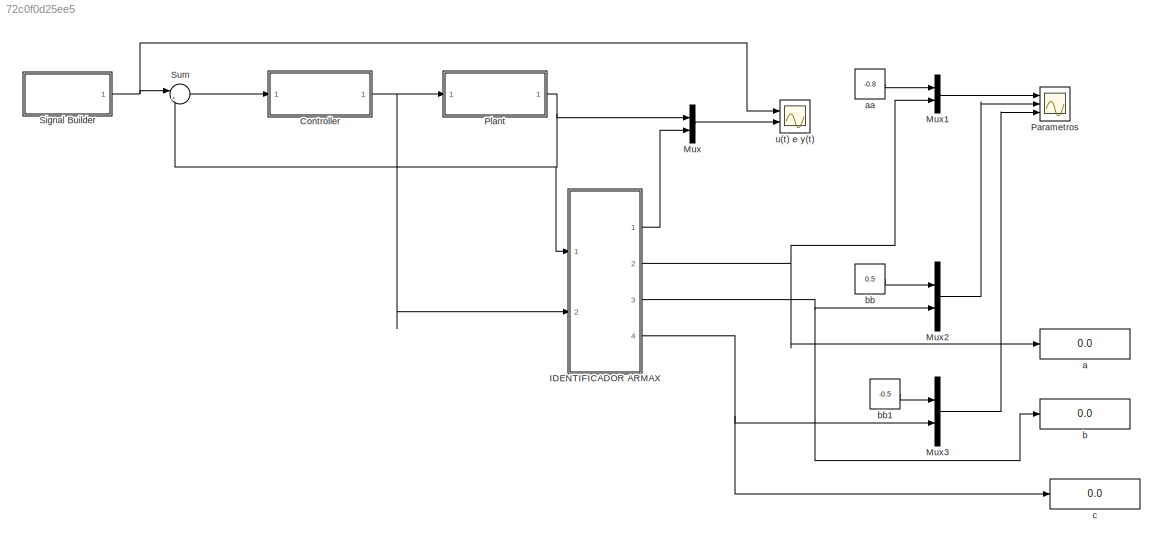
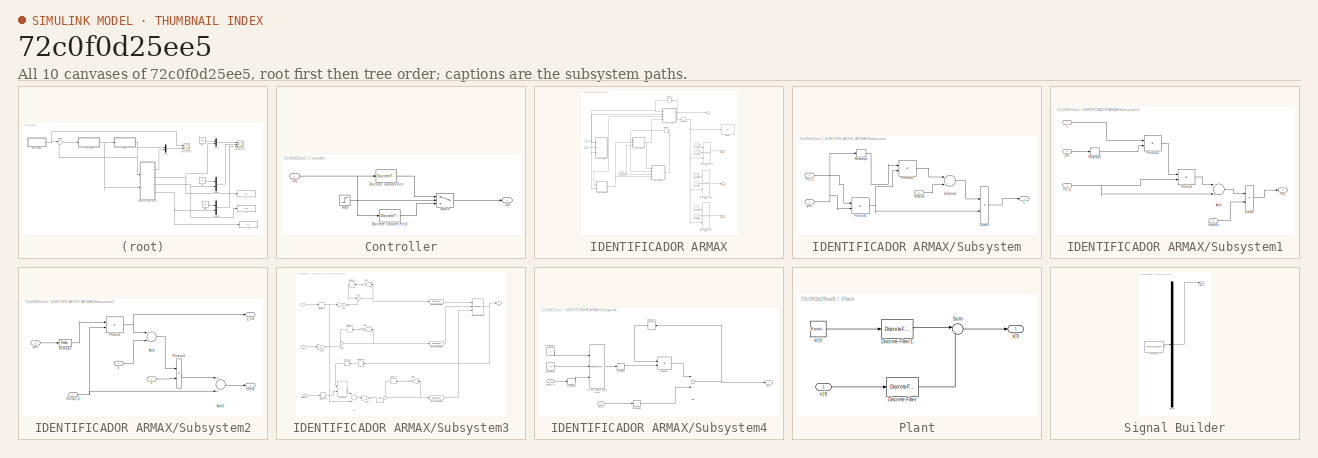
[diagram: thumbnail index - all 10 canvases of the model, root first then tree order]
MODEL slx_72c0f0d25ee5
KIND model
CONFIG AbsTol = auto
CONFIG FixedStep = auto
CONFIG MaxStep = auto
CONFIG MinStep = auto
CONFIG RelTol = 1e-3
CONFIG SampleTimeConstraint = Unconstrained
CONFIG Solver = ode45
CONFIG SolverMode = Auto
CONFIG SolverName = ode45
CONFIG StartTime = 0.0
CONFIG StopTime = 200
BLOCK [SubSystem] Controller
  Ports = [1, 1]
  RequestExecContextInheritance = off
BLOCK [DiscreteTransferFcn] Controller/Discrete Transfer Fcn
  Denominator = [1 0.2]
  InputPortMap = u0
  Ports = [1, 1]
  SampleTime = 0.01
BLOCK [DiscreteTransferFcn] Controller/Discrete Transfer Fcn1
  InputPortMap = u0
  Numerator = [5]
  Ports = [1, 1]
  SampleTime = 0.01
BLOCK [Step] Controller/Step
  SampleTime = 0
  Time = 50
BLOCK [Switch] Controller/Switch
  InputSameDT = off
  SaturateOnIntegerOverflow = off
BLOCK [Inport] Controller/e(t)
  IconDisplay = Port number
BLOCK [Outport] Controller/u(t)
  IconDisplay = Port number
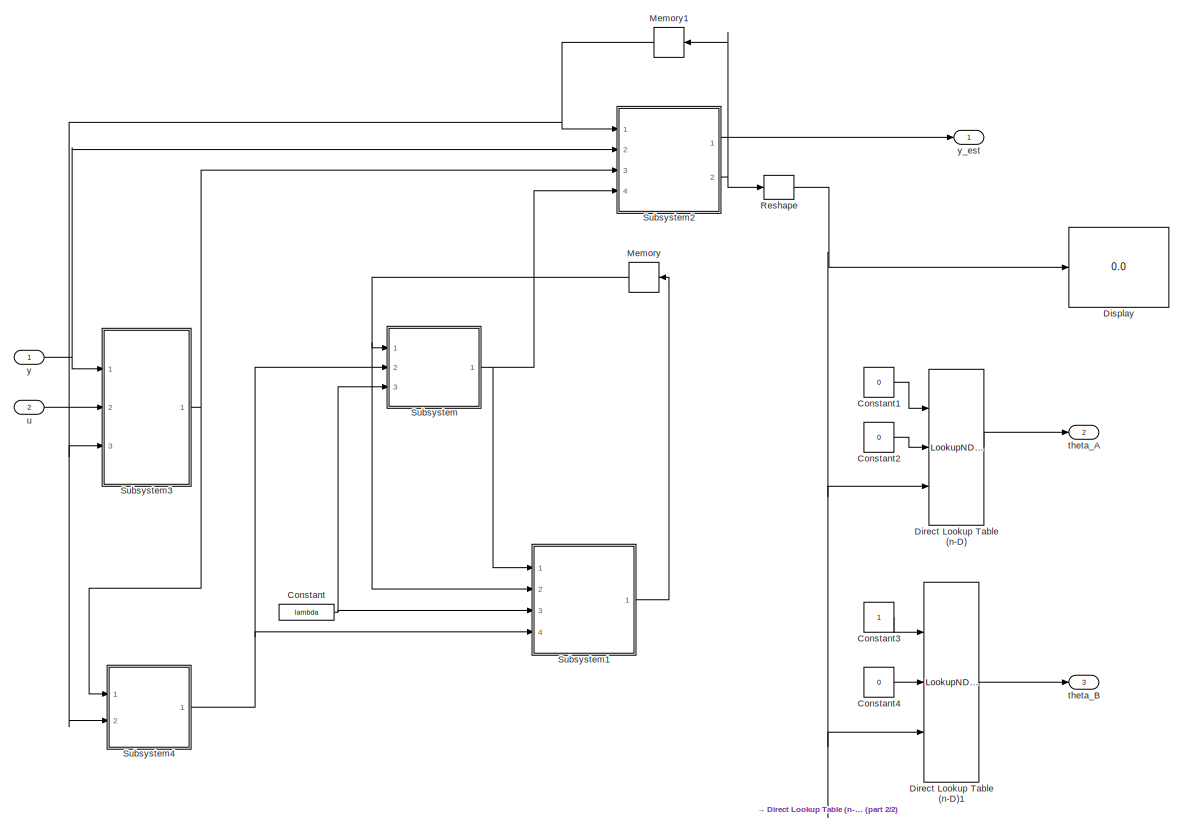
[diagram: IDENTIFICADOR ARMAX - part 1/2, most of the canvas]
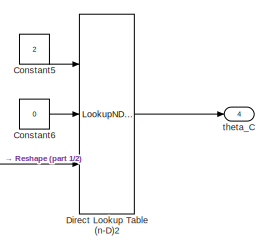
[diagram: IDENTIFICADOR ARMAX - part 2/2, bottom right region]
BLOCK [SubSystem] IDENTIFICADOR ARMAX
  Ports = [2, 4]
  RequestExecContextInheritance = off
BLOCK [Constant] IDENTIFICADOR ARMAX/Constant
  Value = lambda
BLOCK [Constant] IDENTIFICADOR ARMAX/Constant1
  Value = 0
BLOCK [Constant] IDENTIFICADOR ARMAX/Constant2
  Value = 0
BLOCK [Constant] IDENTIFICADOR ARMAX/Constant3
BLOCK [Constant] IDENTIFICADOR ARMAX/Constant4
  Value = 0
BLOCK [Constant] IDENTIFICADOR ARMAX/Constant5
  Value = 2
BLOCK [Constant] IDENTIFICADOR ARMAX/Constant6
  Value = 0
BLOCK [LookupNDDirect] IDENTIFICADOR ARMAX/Direct Lookup Table (n-D)
  DiagnosticForOutOfRangeInput = Error
  Ports = [3, 1]
  SampleTime = 0.01
  Table = [4 5 ;16 19 ]
  TableIsInput = on
BLOCK [LookupNDDirect] IDENTIFICADOR ARMAX/Direct Lookup Table (n-D)1
  DiagnosticForOutOfRangeInput = Error
  Ports = [3, 1]
  SampleTime = 0.01
  Table = [4 5 ;16 19 ]
  TableIsInput = on
BLOCK [LookupNDDirect] IDENTIFICADOR ARMAX/Direct Lookup Table (n-D)2
  DiagnosticForOutOfRangeInput = Error
  Ports = [3, 1]
  SampleTime = 0.01
  Table = [4 5 ;16 19 ]
  TableIsInput = on
BLOCK [Display] IDENTIFICADOR ARMAX/Display
  Decimation = 1
  Ports = [1]
BLOCK [Memory] IDENTIFICADOR ARMAX/Memory
  X0 = 1e6*eye(3)
BLOCK [Memory] IDENTIFICADOR ARMAX/Memory1
BLOCK [Reshape] IDENTIFICADOR ARMAX/Reshape
  OutputDimensionality = Column vector (2-D)
  Ports = [1, 1]
BLOCK [SubSystem] IDENTIFICADOR ARMAX/Subsystem
  Ports = [3, 1]
  RequestExecContextInheritance = off
BLOCK [Product] IDENTIFICADOR ARMAX/Subsystem/Divide
  InputSameDT = off
  Inputs = /*
  OutDataTypeStr = Inherit: Inherit via internal rule
  Ports = [2, 1]
  RndMeth = Floor
  SaturateOnIntegerOverflow = off
BLOCK [Outport] IDENTIFICADOR ARMAX/Subsystem/L
  IconDisplay = Port number
BLOCK [Inport] IDENTIFICADOR ARMAX/Subsystem/P(t-1)
  IconDisplay = Port number
BLOCK [Product] IDENTIFICADOR ARMAX/Subsystem/Product1
  InputSameDT = off
  Multiplication = Matrix(*)
  OutDataTypeStr = Inherit: Inherit via internal rule
  Ports = [2, 1]
  RndMeth = Floor
  SampleTime = 0.01
  SaturateOnIntegerOverflow = off
BLOCK [Product] IDENTIFICADOR ARMAX/Subsystem/Product2
  InputSameDT = off
  Multiplication = Matrix(*)
  OutDataTypeStr = Inherit: Inherit via internal rule
  Ports = [2, 1]
  RndMeth = Floor
  SampleTime = 0.01
  SaturateOnIntegerOverflow = off
BLOCK [Reshape] IDENTIFICADOR ARMAX/Subsystem/Reshape
  OutputDimensionality = Row vector (2-D)
  Ports = [1, 1]
BLOCK [Sum] IDENTIFICADOR ARMAX/Subsystem/Subtract
  InputSameDT = off
  OutDataTypeStr = Inherit: Inherit via internal rule
  Ports = [2, 1]
  SaturateOnIntegerOverflow = off
BLOCK [Inport] IDENTIFICADOR ARMAX/Subsystem/lambda
  IconDisplay = Port number
  Port = 3
BLOCK [Inport] IDENTIFICADOR ARMAX/Subsystem/phi
  IconDisplay = Port number
  Port = 2
BLOCK [SubSystem] IDENTIFICADOR ARMAX/Subsystem1
  Ports = [4, 1]
  RequestExecContextInheritance = off
BLOCK [Sum] IDENTIFICADOR ARMAX/Subsystem1/Add
  InputSameDT = off
  Inputs = -+
  OutDataTypeStr = Inherit: Inherit via internal rule
  Ports = [2, 1]
  SaturateOnIntegerOverflow = off
BLOCK [Product] IDENTIFICADOR ARMAX/Subsystem1/Divide
  InputSameDT = off
  Inputs = */
  OutDataTypeStr = Inherit: Inherit via internal rule
  Ports = [2, 1]
  RndMeth = Floor
  SaturateOnIntegerOverflow = off
BLOCK [Inport] IDENTIFICADOR ARMAX/Subsystem1/L
  IconDisplay = Port number
BLOCK [Outport] IDENTIFICADOR ARMAX/Subsystem1/P(t)
  IconDisplay = Port number
BLOCK [Inport] IDENTIFICADOR ARMAX/Subsystem1/P(t-1)
  IconDisplay = Port number
  Port = 2
BLOCK [Product] IDENTIFICADOR ARMAX/Subsystem1/Product
  InputSameDT = off
  Multiplication = Matrix(*)
  OutDataTypeStr = Inherit: Inherit via internal rule
  Ports = [2, 1]
  RndMeth = Floor
  SampleTime = 0.01
  SaturateOnIntegerOverflow = off
BLOCK [Product] IDENTIFICADOR ARMAX/Subsystem1/Product2
  InputSameDT = off
  Multiplication = Matrix(*)
  OutDataTypeStr = Inherit: Inherit via internal rule
  Ports = [2, 1]
  RndMeth = Floor
  SampleTime = 0.01
  SaturateOnIntegerOverflow = off
BLOCK [Reshape] IDENTIFICADOR ARMAX/Subsystem1/Reshape
  OutputDimensionality = Row vector (2-D)
  Ports = [1, 1]
BLOCK [Inport] IDENTIFICADOR ARMAX/Subsystem1/lambda
  IconDisplay = Port number
  Port = 3
BLOCK [Inport] IDENTIFICADOR ARMAX/Subsystem1/phi
  IconDisplay = Port number
  Port = 4
BLOCK [SubSystem] IDENTIFICADOR ARMAX/Subsystem2
  Ports = [4, 2]
  RequestExecContextInheritance = off
BLOCK [Sum] IDENTIFICADOR ARMAX/Subsystem2/Add
  InputSameDT = off
  Inputs = -+
  OutDataTypeStr = Inherit: Inherit via internal rule
  Ports = [2, 1]
  SaturateOnIntegerOverflow = off
BLOCK [Sum] IDENTIFICADOR ARMAX/Subsystem2/Add1
  InputSameDT = off
  OutDataTypeStr = Inherit: Inherit via internal rule
  Ports = [2, 1]
  SaturateOnIntegerOverflow = off
BLOCK [Inport] IDENTIFICADOR ARMAX/Subsystem2/L
  IconDisplay = Port number
  Port = 4
BLOCK [Product] IDENTIFICADOR ARMAX/Subsystem2/Product
  InputSameDT = off
  Multiplication = Matrix(*)
  OutDataTypeStr = Inherit: Inherit via internal rule
  Ports = [2, 1]
  RndMeth = Floor
  SampleTime = 0.01
  SaturateOnIntegerOverflow = off
BLOCK [Product] IDENTIFICADOR ARMAX/Subsystem2/Product1
  InputSameDT = off
  OutDataTypeStr = Inherit: Inherit via internal rule
  Ports = [2, 1]
  RndMeth = Floor
  SaturateOnIntegerOverflow = off
BLOCK [Reshape] IDENTIFICADOR ARMAX/Subsystem2/Reshape
  OutputDimensionality = Row vector (2-D)
  Ports = [1, 1]
BLOCK [Inport] IDENTIFICADOR ARMAX/Subsystem2/phi
  IconDisplay = Port number
  Port = 3
BLOCK [Outport] IDENTIFICADOR ARMAX/Subsystem2/theta
  IconDisplay = Port number
  Port = 2
BLOCK [Inport] IDENTIFICADOR ARMAX/Subsystem2/theta(t-1)
  IconDisplay = Port number
BLOCK [Inport] IDENTIFICADOR ARMAX/Subsystem2/y
  IconDisplay = Port number
  Port = 2
BLOCK [Outport] IDENTIFICADOR ARMAX/Subsystem2/y_est
  IconDisplay = Port number
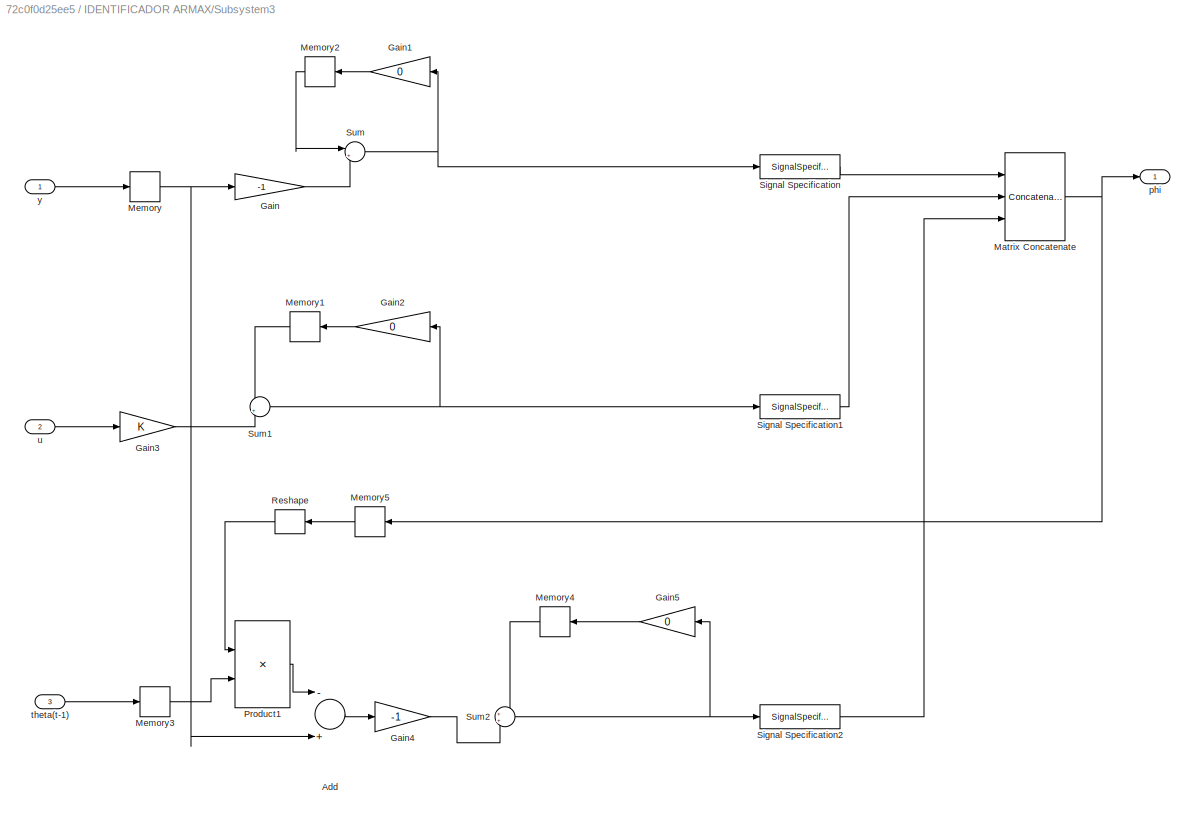
BLOCK [SubSystem] IDENTIFICADOR ARMAX/Subsystem3
  Ports = [3, 1]
  RequestExecContextInheritance = off
BLOCK [Sum] IDENTIFICADOR ARMAX/Subsystem3/Add
  InputSameDT = off
  Inputs = -+
  OutDataTypeStr = Inherit: Inherit via internal rule
  Ports = [2, 1]
  SaturateOnIntegerOverflow = off
BLOCK [Gain] IDENTIFICADOR ARMAX/Subsystem3/Gain
  Gain = -1
  Multiplication = Matrix(K*u)
  OutDataTypeStr = Inherit: Inherit via internal rule
  ParamDataTypeStr = Inherit: Inherit via internal rule
  SaturateOnIntegerOverflow = off
BLOCK [Gain] IDENTIFICADOR ARMAX/Subsystem3/Gain1
  Gain = 0
  Multiplication = Matrix(K*u)
  OutDataTypeStr = Inherit: Inherit via internal rule
  ParamDataTypeStr = Inherit: Inherit via internal rule
  SaturateOnIntegerOverflow = off
BLOCK [Gain] IDENTIFICADOR ARMAX/Subsystem3/Gain2
  Gain = 0
  Multiplication = Matrix(K*u)
  OutDataTypeStr = Inherit: Inherit via internal rule
  ParamDataTypeStr = Inherit: Inherit via internal rule
  SaturateOnIntegerOverflow = off
BLOCK [Gain] IDENTIFICADOR ARMAX/Subsystem3/Gain3
  Multiplication = Matrix(K*u)
  OutDataTypeStr = Inherit: Inherit via internal rule
  ParamDataTypeStr = Inherit: Inherit via internal rule
  SaturateOnIntegerOverflow = off
BLOCK [Gain] IDENTIFICADOR ARMAX/Subsystem3/Gain4
  Gain = -1
  Multiplication = Matrix(K*u)
  OutDataTypeStr = Inherit: Inherit via internal rule
  ParamDataTypeStr = Inherit: Inherit via internal rule
  SaturateOnIntegerOverflow = off
BLOCK [Gain] IDENTIFICADOR ARMAX/Subsystem3/Gain5
  Gain = 0
  Multiplication = Matrix(K*u)
  OutDataTypeStr = Inherit: Inherit via internal rule
  ParamDataTypeStr = Inherit: Inherit via internal rule
  SaturateOnIntegerOverflow = off
BLOCK [Concatenate] IDENTIFICADOR ARMAX/Subsystem3/Matrix Concatenate
  Mode = Multidimensional array
  NumInputs = 3
  Ports = [3, 1]
BLOCK [Memory] IDENTIFICADOR ARMAX/Subsystem3/Memory
BLOCK [Memory] IDENTIFICADOR ARMAX/Subsystem3/Memory1
BLOCK [Memory] IDENTIFICADOR ARMAX/Subsystem3/Memory2
BLOCK [Memory] IDENTIFICADOR ARMAX/Subsystem3/Memory3
BLOCK [Memory] IDENTIFICADOR ARMAX/Subsystem3/Memory4
BLOCK [Memory] IDENTIFICADOR ARMAX/Subsystem3/Memory5
BLOCK [Product] IDENTIFICADOR ARMAX/Subsystem3/Product1
  InputSameDT = off
  Multiplication = Matrix(*)
  OutDataTypeStr = Inherit: Inherit via internal rule
  Ports = [2, 1]
  RndMeth = Floor
  SampleTime = 0.01
  SaturateOnIntegerOverflow = off
BLOCK [Reshape] IDENTIFICADOR ARMAX/Subsystem3/Reshape
  OutputDimensionality = Row vector (2-D)
  Ports = [1, 1]
BLOCK [SignalSpecification] IDENTIFICADOR ARMAX/Subsystem3/Signal Specification
  Dimensions = [1 1]
BLOCK [SignalSpecification] IDENTIFICADOR ARMAX/Subsystem3/Signal Specification1
  Dimensions = [1 1]
BLOCK [SignalSpecification] IDENTIFICADOR ARMAX/Subsystem3/Signal Specification2
  Dimensions = [1 1]
BLOCK [Sum] IDENTIFICADOR ARMAX/Subsystem3/Sum
  IconShape = round
  InputSameDT = off
  Inputs = |++
  OutDataTypeStr = Inherit: Inherit via internal rule
  Ports = [2, 1]
  SaturateOnIntegerOverflow = off
BLOCK [Sum] IDENTIFICADOR ARMAX/Subsystem3/Sum1
  IconShape = round
  InputSameDT = off
  Inputs = |++
  OutDataTypeStr = Inherit: Inherit via internal rule
  Ports = [2, 1]
  SaturateOnIntegerOverflow = off
BLOCK [Sum] IDENTIFICADOR ARMAX/Subsystem3/Sum2
  IconShape = round
  InputSameDT = off
  OutDataTypeStr = Inherit: Inherit via internal rule
  Ports = [2, 1]
  SaturateOnIntegerOverflow = off
BLOCK [Outport] IDENTIFICADOR ARMAX/Subsystem3/phi
  IconDisplay = Port number
BLOCK [Inport] IDENTIFICADOR ARMAX/Subsystem3/theta(t-1)
  IconDisplay = Port number
  Port = 3
BLOCK [Inport] IDENTIFICADOR ARMAX/Subsystem3/u
  IconDisplay = Port number
  Port = 2
BLOCK [Inport] IDENTIFICADOR ARMAX/Subsystem3/y
  IconDisplay = Port number
BLOCK [SubSystem] IDENTIFICADOR ARMAX/Subsystem4
  Ports = [2, 1]
  RequestExecContextInheritance = off
BLOCK [Sum] IDENTIFICADOR ARMAX/Subsystem4/Add
  InputSameDT = off
  Inputs = -+
  OutDataTypeStr = Inherit: Inherit via internal rule
  Ports = [2, 1]
  SaturateOnIntegerOverflow = off
BLOCK [Constant] IDENTIFICADOR ARMAX/Subsystem4/Constant1
  Value = 2
BLOCK [Constant] IDENTIFICADOR ARMAX/Subsystem4/Constant2
  Value = 0
BLOCK [LookupNDDirect] IDENTIFICADOR ARMAX/Subsystem4/Direct Lookup Table (n-D)
  DiagnosticForOutOfRangeInput = Error
  Ports = [3, 1]
  SampleTime = 0.01
  Table = [4 5 ;16 19 ]
  TableIsInput = on
BLOCK [Memory] IDENTIFICADOR ARMAX/Subsystem4/Memory5
BLOCK [Product] IDENTIFICADOR ARMAX/Subsystem4/Product1
  InputSameDT = off
  Multiplication = Matrix(*)
  OutDataTypeStr = Inherit: Inherit via internal rule
  Ports = [2, 1]
  RndMeth = Floor
  SampleTime = 0.01
  SaturateOnIntegerOverflow = off
BLOCK [Reshape] IDENTIFICADOR ARMAX/Subsystem4/Reshape1
  OutputDimensionality = Column vector (2-D)
  Ports = [1, 1]
BLOCK [Reshape] IDENTIFICADOR ARMAX/Subsystem4/Reshape2
  OutputDimensionality = Column vector (2-D)
  Ports = [1, 1]
BLOCK [Reshape] IDENTIFICADOR ARMAX/Subsystem4/Reshape3
  OutputDimensionality = Column vector (2-D)
  Ports = [1, 1]
BLOCK [Inport] IDENTIFICADOR ARMAX/Subsystem4/phi(t)
  IconDisplay = Port number
BLOCK [Outport] IDENTIFICADOR ARMAX/Subsystem4/psi(t)
  IconDisplay = Port number
BLOCK [Inport] IDENTIFICADOR ARMAX/Subsystem4/theta(t-1)
  IconDisplay = Port number
  Port = 2
BLOCK [Outport] IDENTIFICADOR ARMAX/theta_A
  IconDisplay = Port number
  Port = 2
BLOCK [Outport] IDENTIFICADOR ARMAX/theta_B
  IconDisplay = Port number
  Port = 3
BLOCK [Outport] IDENTIFICADOR ARMAX/theta_C
  IconDisplay = Port number
  Port = 4
BLOCK [Inport] IDENTIFICADOR ARMAX/u
  IconDisplay = Port number
  Port = 2
BLOCK [Inport] IDENTIFICADOR ARMAX/y
  IconDisplay = Port number
BLOCK [Outport] IDENTIFICADOR ARMAX/y_est
  IconDisplay = Port number
BLOCK [Mux] Mux
  DisplayOption = bar
  Inputs = 2
  Ports = [2, 1]
BLOCK [Mux] Mux1
  DisplayOption = bar
  Inputs = 2
  Ports = [2, 1]
BLOCK [Mux] Mux2
  DisplayOption = bar
  Inputs = 2
  Ports = [2, 1]
BLOCK [Mux] Mux3
  DisplayOption = bar
  Inputs = 2
  Ports = [2, 1]
BLOCK [Scope] Parametros
  DataFormat = StructureWithTime
  Floating = off
  LimitDataPoints = off
  NumInputPorts = 3
  Ports = [3]
  SampleTime = 0
  SaveName = ScopeData1
  YMax = 5~5~5
  YMin = -5~-5~-5
BLOCK [SubSystem] Plant
  Ports = [1, 1]
  RequestExecContextInheritance = off
BLOCK [DiscreteFilter] Plant/Discrete Filter
  Denominator = [1 -0.8]
  InputPortMap = u0
  Numerator = [0 0.5]
  Ports = [1, 1]
  SampleTime = 0.01
BLOCK [DiscreteFilter] Plant/Discrete Filter1
  Denominator = [1 -0.8]
  InputPortMap = u0
  Numerator = [1 -0.5]
  Ports = [1, 1]
BLOCK [Sum] Plant/Sum
  IconShape = round
  InputSameDT = off
  Inputs = |++
  OutDataTypeStr = Inherit: Inherit via internal rule
  Ports = [2, 1]
  SaturateOnIntegerOverflow = off
BLOCK [RandomNumber] Plant/e(t)
  SampleTime = 0.1
  Variance = 0.00001
BLOCK [Inport] Plant/u(t)
  IconDisplay = Port number
BLOCK [Outport] Plant/y(t)
  IconDisplay = Port number
BLOCK [SubSystem] Signal Builder
  ClipboardFcn = sigbuilder_block('clipboard');
  CloseFcn = sigbuilder_block('close');
  ContinueFcn = sigbuilder_block('continue');
  CopyFcn = sigbuilder_block('copy');
  DeleteFcn = sigbuilder_block('delete');
  LoadFcn = sigbuilder_block('load');
  MaskHideContents = on
  ModelCloseFcn = sigbuilder_block('modelClose');
  NameChangeFcn = sigbuilder_block('namechange');
  OpenFcn = sigbuilder_block('open',[0 30 1080 588 ]);
  PauseFcn = sigbuilder_block('pause');
  Ports = [0, 1]
  PreSaveFcn = sigbuilder_block('preSave');
  RequestExecContextInheritance = off
  StartFcn = sigbuilder_block('start');
  StopFcn = sigbuilder_block('stop');
  Tag = STV Subsys
BLOCK [Demux] Signal Builder/Demux
  Outputs = 1
  Ports = [1, 1]
  Tag = STV Demux
BLOCK [FromWorkspace] Signal Builder/FromWs
  SampleTime = 0
  Tag = STV FromWs
  VariableName = tuvar
  ZeroCross = on
BLOCK [Outport] Signal Builder/Signal 1
  IconDisplay = Port number
  Tag = STV Outport
BLOCK [Sum] Sum
  IconShape = round
  InputSameDT = off
  Inputs = |+-
  OutDataTypeStr = Inherit: Inherit via internal rule
  Ports = [2, 1]
  SaturateOnIntegerOverflow = off
BLOCK [Display] a
  Decimation = 1
  Ports = [1]
BLOCK [Constant] aa
  Value = -0.8
BLOCK [Display] b
  Decimation = 1
  Ports = [1]
BLOCK [Constant] bb
  Value = 0.5
BLOCK [Constant] bb1
  Value = -0.5
BLOCK [Display] c
  Decimation = 1
  Ports = [1]
BLOCK [Scope] u(t) e y(t)
  DataFormat = StructureWithTime
  Floating = off
  LimitDataPoints = off
  NumInputPorts = 2
  Ports = [2]
  SampleTime = 0
  SaveToWorkspace = on
  YMax = 5~5
  YMin = -5~-5
LINE Controller/Discrete Transfer Fcn1:1 -> Controller/Switch:3
LINE Controller/Discrete Transfer Fcn:1 -> Controller/Switch:1
LINE Controller/Step:1 -> Controller/Switch:2
LINE Controller/Switch:1 -> Controller/u(t):1
NET Controller/e(t):1 -> Controller/Discrete Transfer Fcn1:1, Controller/Discrete Transfer Fcn:1
NET Controller:1 -> IDENTIFICADOR ARMAX:2, Plant:1
LINE IDENTIFICADOR ARMAX/Constant1:1 -> IDENTIFICADOR ARMAX/Direct Lookup Table (n-D):1
LINE IDENTIFICADOR ARMAX/Constant2:1 -> IDENTIFICADOR ARMAX/Direct Lookup Table (n-D):2
LINE IDENTIFICADOR ARMAX/Constant3:1 -> IDENTIFICADOR ARMAX/Direct Lookup Table (n-D)1:1
LINE IDENTIFICADOR ARMAX/Constant4:1 -> IDENTIFICADOR ARMAX/Direct Lookup Table (n-D)1:2
LINE IDENTIFICADOR ARMAX/Constant5:1 -> IDENTIFICADOR ARMAX/Direct Lookup Table (n-D)2:1
LINE IDENTIFICADOR ARMAX/Constant6:1 -> IDENTIFICADOR ARMAX/Direct Lookup Table (n-D)2:2
NET IDENTIFICADOR ARMAX/Constant:1 -> IDENTIFICADOR ARMAX/Subsystem1:3, IDENTIFICADOR ARMAX/Subsystem:3
LINE IDENTIFICADOR ARMAX/Direct Lookup Table (n-D)1:1 -> IDENTIFICADOR ARMAX/theta_B:1
LINE IDENTIFICADOR ARMAX/Direct Lookup Table (n-D)2:1 -> IDENTIFICADOR ARMAX/theta_C:1
LINE IDENTIFICADOR ARMAX/Direct Lookup Table (n-D):1 -> IDENTIFICADOR ARMAX/theta_A:1
NET IDENTIFICADOR ARMAX/Memory1:1 -> IDENTIFICADOR ARMAX/Subsystem2:1, IDENTIFICADOR ARMAX/Subsystem3:3, IDENTIFICADOR ARMAX/Subsystem4:2
NET IDENTIFICADOR ARMAX/Memory:1 -> IDENTIFICADOR ARMAX/Subsystem1:2, IDENTIFICADOR ARMAX/Subsystem:1
NET IDENTIFICADOR ARMAX/Reshape:1 -> IDENTIFICADOR ARMAX/Direct Lookup Table (n-D)1:3, IDENTIFICADOR ARMAX/Direct Lookup Table (n-D)2:3, IDENTIFICADOR ARMAX/Direct Lookup Table (n-D):3, IDENTIFICADOR ARMAX/Display:1
LINE IDENTIFICADOR ARMAX/Subsystem/Divide:1 -> IDENTIFICADOR ARMAX/Subsystem/L:1
LINE IDENTIFICADOR ARMAX/Subsystem/P(t-1):1 -> IDENTIFICADOR ARMAX/Subsystem/Product1:1
NET IDENTIFICADOR ARMAX/Subsystem/Product1:1 -> IDENTIFICADOR ARMAX/Subsystem/Divide:2, IDENTIFICADOR ARMAX/Subsystem/Product2:2
LINE IDENTIFICADOR ARMAX/Subsystem/Product2:1 -> IDENTIFICADOR ARMAX/Subsystem/Subtract:1
LINE IDENTIFICADOR ARMAX/Subsystem/Reshape:1 -> IDENTIFICADOR ARMAX/Subsystem/Product2:1
LINE IDENTIFICADOR ARMAX/Subsystem/Subtract:1 -> IDENTIFICADOR ARMAX/Subsystem/Divide:1
LINE IDENTIFICADOR ARMAX/Subsystem/lambda:1 -> IDENTIFICADOR ARMAX/Subsystem/Subtract:2
NET IDENTIFICADOR ARMAX/Subsystem/phi:1 -> IDENTIFICADOR ARMAX/Subsystem/Product1:2, IDENTIFICADOR ARMAX/Subsystem/Reshape:1
LINE IDENTIFICADOR ARMAX/Subsystem1/Add:1 -> IDENTIFICADOR ARMAX/Subsystem1/Divide:1
LINE IDENTIFICADOR ARMAX/Subsystem1/Divide:1 -> IDENTIFICADOR ARMAX/Subsystem1/P(t):1
LINE IDENTIFICADOR ARMAX/Subsystem1/L:1 -> IDENTIFICADOR ARMAX/Subsystem1/Product2:1
NET IDENTIFICADOR ARMAX/Subsystem1/P(t-1):1 -> IDENTIFICADOR ARMAX/Subsystem1/Add:2, IDENTIFICADOR ARMAX/Subsystem1/Product:2
LINE IDENTIFICADOR ARMAX/Subsystem1/Product2:1 -> IDENTIFICADOR ARMAX/Subsystem1/Product:1
LINE IDENTIFICADOR ARMAX/Subsystem1/Product:1 -> IDENTIFICADOR ARMAX/Subsystem1/Add:1
LINE IDENTIFICADOR ARMAX/Subsystem1/Reshape:1 -> IDENTIFICADOR ARMAX/Subsystem1/Product2:2
LINE IDENTIFICADOR ARMAX/Subsystem1/lambda:1 -> IDENTIFICADOR ARMAX/Subsystem1/Divide:2
LINE IDENTIFICADOR ARMAX/Subsystem1/phi:1 -> IDENTIFICADOR ARMAX/Subsystem1/Reshape:1
LINE IDENTIFICADOR ARMAX/Subsystem1:1 -> IDENTIFICADOR ARMAX/Memory:1
LINE IDENTIFICADOR ARMAX/Subsystem2/Add1:1 -> IDENTIFICADOR ARMAX/Subsystem2/theta:1
LINE IDENTIFICADOR ARMAX/Subsystem2/Add:1 -> IDENTIFICADOR ARMAX/Subsystem2/Product1:1
LINE IDENTIFICADOR ARMAX/Subsystem2/L:1 -> IDENTIFICADOR ARMAX/Subsystem2/Product1:2
LINE IDENTIFICADOR ARMAX/Subsystem2/Product1:1 -> IDENTIFICADOR ARMAX/Subsystem2/Add1:1
NET IDENTIFICADOR ARMAX/Subsystem2/Product:1 -> IDENTIFICADOR ARMAX/Subsystem2/Add:1, IDENTIFICADOR ARMAX/Subsystem2/y_est:1
LINE IDENTIFICADOR ARMAX/Subsystem2/Reshape:1 -> IDENTIFICADOR ARMAX/Subsystem2/Product:1
LINE IDENTIFICADOR ARMAX/Subsystem2/phi:1 -> IDENTIFICADOR ARMAX/Subsystem2/Reshape:1
NET IDENTIFICADOR ARMAX/Subsystem2/theta(t-1):1 -> IDENTIFICADOR ARMAX/Subsystem2/Add1:2, IDENTIFICADOR ARMAX/Subsystem2/Product:2
LINE IDENTIFICADOR ARMAX/Subsystem2/y:1 -> IDENTIFICADOR ARMAX/Subsystem2/Add:2
LINE IDENTIFICADOR ARMAX/Subsystem2:1 -> IDENTIFICADOR ARMAX/y_est:1
NET IDENTIFICADOR ARMAX/Subsystem2:2 -> IDENTIFICADOR ARMAX/Memory1:1, IDENTIFICADOR ARMAX/Reshape:1
LINE IDENTIFICADOR ARMAX/Subsystem3/Add:1 -> IDENTIFICADOR ARMAX/Subsystem3/Gain4:1
LINE IDENTIFICADOR ARMAX/Subsystem3/Gain1:1 -> IDENTIFICADOR ARMAX/Subsystem3/Memory2:1
LINE IDENTIFICADOR ARMAX/Subsystem3/Gain2:1 -> IDENTIFICADOR ARMAX/Subsystem3/Memory1:1
LINE IDENTIFICADOR ARMAX/Subsystem3/Gain3:1 -> IDENTIFICADOR ARMAX/Subsystem3/Sum1:2
LINE IDENTIFICADOR ARMAX/Subsystem3/Gain4:1 -> IDENTIFICADOR ARMAX/Subsystem3/Sum2:2
LINE IDENTIFICADOR ARMAX/Subsystem3/Gain5:1 -> IDENTIFICADOR ARMAX/Subsystem3/Memory4:1
LINE IDENTIFICADOR ARMAX/Subsystem3/Gain:1 -> IDENTIFICADOR ARMAX/Subsystem3/Sum:2
NET IDENTIFICADOR ARMAX/Subsystem3/Matrix Concatenate:1 -> IDENTIFICADOR ARMAX/Subsystem3/Memory5:1, IDENTIFICADOR ARMAX/Subsystem3/phi:1
LINE IDENTIFICADOR ARMAX/Subsystem3/Memory1:1 -> IDENTIFICADOR ARMAX/Subsystem3/Sum1:1
LINE IDENTIFICADOR ARMAX/Subsystem3/Memory2:1 -> IDENTIFICADOR ARMAX/Subsystem3/Sum:1
LINE IDENTIFICADOR ARMAX/Subsystem3/Memory3:1 -> IDENTIFICADOR ARMAX/Subsystem3/Product1:2
LINE IDENTIFICADOR ARMAX/Subsystem3/Memory4:1 -> IDENTIFICADOR ARMAX/Subsystem3/Sum2:1
LINE IDENTIFICADOR ARMAX/Subsystem3/Memory5:1 -> IDENTIFICADOR ARMAX/Subsystem3/Reshape:1
NET IDENTIFICADOR ARMAX/Subsystem3/Memory:1 -> IDENTIFICADOR ARMAX/Subsystem3/Add:2, IDENTIFICADOR ARMAX/Subsystem3/Gain:1
LINE IDENTIFICADOR ARMAX/Subsystem3/Product1:1 -> IDENTIFICADOR ARMAX/Subsystem3/Add:1
LINE IDENTIFICADOR ARMAX/Subsystem3/Reshape:1 -> IDENTIFICADOR ARMAX/Subsystem3/Product1:1
LINE IDENTIFICADOR ARMAX/Subsystem3/Signal Specification1:1 -> IDENTIFICADOR ARMAX/Subsystem3/Matrix Concatenate:2
LINE IDENTIFICADOR ARMAX/Subsystem3/Signal Specification2:1 -> IDENTIFICADOR ARMAX/Subsystem3/Matrix Concatenate:3
LINE IDENTIFICADOR ARMAX/Subsystem3/Signal Specification:1 -> IDENTIFICADOR ARMAX/Subsystem3/Matrix Concatenate:1
NET IDENTIFICADOR ARMAX/Subsystem3/Sum1:1 -> IDENTIFICADOR ARMAX/Subsystem3/Gain2:1, IDENTIFICADOR ARMAX/Subsystem3/Signal Specification1:1
NET IDENTIFICADOR ARMAX/Subsystem3/Sum2:1 -> IDENTIFICADOR ARMAX/Subsystem3/Gain5:1, IDENTIFICADOR ARMAX/Subsystem3/Signal Specification2:1
NET IDENTIFICADOR ARMAX/Subsystem3/Sum:1 -> IDENTIFICADOR ARMAX/Subsystem3/Gain1:1, IDENTIFICADOR ARMAX/Subsystem3/Signal Specification:1
LINE IDENTIFICADOR ARMAX/Subsystem3/theta(t-1):1 -> IDENTIFICADOR ARMAX/Subsystem3/Memory3:1
LINE IDENTIFICADOR ARMAX/Subsystem3/u:1 -> IDENTIFICADOR ARMAX/Subsystem3/Gain3:1
LINE IDENTIFICADOR ARMAX/Subsystem3/y:1 -> IDENTIFICADOR ARMAX/Subsystem3/Memory:1
NET IDENTIFICADOR ARMAX/Subsystem3:1 -> IDENTIFICADOR ARMAX/Subsystem2:3, IDENTIFICADOR ARMAX/Subsystem4:1
NET IDENTIFICADOR ARMAX/Subsystem4/Add:1 -> IDENTIFICADOR ARMAX/Subsystem4/Memory5:1, IDENTIFICADOR ARMAX/Subsystem4/psi(t):1
LINE IDENTIFICADOR ARMAX/Subsystem4/Constant1:1 -> IDENTIFICADOR ARMAX/Subsystem4/Direct Lookup Table (n-D):1
LINE IDENTIFICADOR ARMAX/Subsystem4/Constant2:1 -> IDENTIFICADOR ARMAX/Subsystem4/Direct Lookup Table (n-D):2
LINE IDENTIFICADOR ARMAX/Subsystem4/Direct Lookup Table (n-D):1 -> IDENTIFICADOR ARMAX/Subsystem4/Reshape2:1
LINE IDENTIFICADOR ARMAX/Subsystem4/Memory5:1 -> IDENTIFICADOR ARMAX/Subsystem4/Product1:1
LINE IDENTIFICADOR ARMAX/Subsystem4/Product1:1 -> IDENTIFICADOR ARMAX/Subsystem4/Add:1
LINE IDENTIFICADOR ARMAX/Subsystem4/Reshape1:1 -> IDENTIFICADOR ARMAX/Subsystem4/Add:2
LINE IDENTIFICADOR ARMAX/Subsystem4/Reshape2:1 -> IDENTIFICADOR ARMAX/Subsystem4/Product1:2
LINE IDENTIFICADOR ARMAX/Subsystem4/Reshape3:1 -> IDENTIFICADOR ARMAX/Subsystem4/Direct Lookup Table (n-D):3
LINE IDENTIFICADOR ARMAX/Subsystem4/phi(t):1 -> IDENTIFICADOR ARMAX/Subsystem4/Reshape1:1
LINE IDENTIFICADOR ARMAX/Subsystem4/theta(t-1):1 -> IDENTIFICADOR ARMAX/Subsystem4/Reshape3:1
NET IDENTIFICADOR ARMAX/Subsystem4:1 -> IDENTIFICADOR ARMAX/Subsystem1:4, IDENTIFICADOR ARMAX/Subsystem:2
NET IDENTIFICADOR ARMAX/Subsystem:1 -> IDENTIFICADOR ARMAX/Subsystem1:1, IDENTIFICADOR ARMAX/Subsystem2:4
LINE IDENTIFICADOR ARMAX/u:1 -> IDENTIFICADOR ARMAX/Subsystem3:2
NET IDENTIFICADOR ARMAX/y:1 -> IDENTIFICADOR ARMAX/Subsystem2:2, IDENTIFICADOR ARMAX/Subsystem3:1
LINE IDENTIFICADOR ARMAX:1 -> Mux:2
NET IDENTIFICADOR ARMAX:2 -> Mux1:2, a:1
NET IDENTIFICADOR ARMAX:3 -> Mux2:2, b:1
NET IDENTIFICADOR ARMAX:4 -> Mux3:2, c:1
LINE Mux1:1 -> Parametros:1
LINE Mux2:1 -> Parametros:2
LINE Mux3:1 -> Parametros:3
LINE Mux:1 -> u(t) e y(t):2
LINE Plant/Discrete Filter1:1 -> Plant/Sum:1
LINE Plant/Discrete Filter:1 -> Plant/Sum:2
LINE Plant/Sum:1 -> Plant/y(t):1
LINE Plant/e(t):1 -> Plant/Discrete Filter1:1
LINE Plant/u(t):1 -> Plant/Discrete Filter:1
NET Plant:1 -> IDENTIFICADOR ARMAX:1, Mux:1, Sum:2
NET Signal Builder:1 -> Sum:1, u(t) e y(t):1
LINE Sum:1 -> Controller:1
LINE aa:1 -> Mux1:1
LINE bb1:1 -> Mux3:1
LINE bb:1 -> Mux2:1
note: NET lines group one-source signal fan-out (src -> all destinations, sorted); 1:1 wires keep LINE
